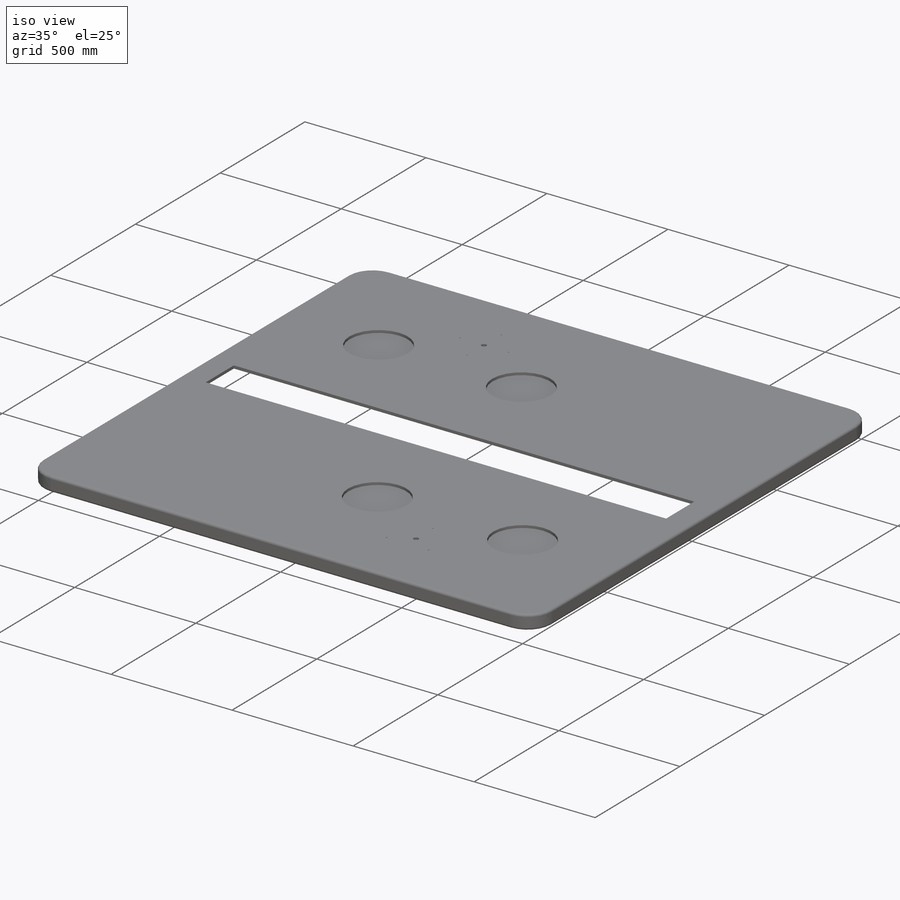
[diagram: iso view]
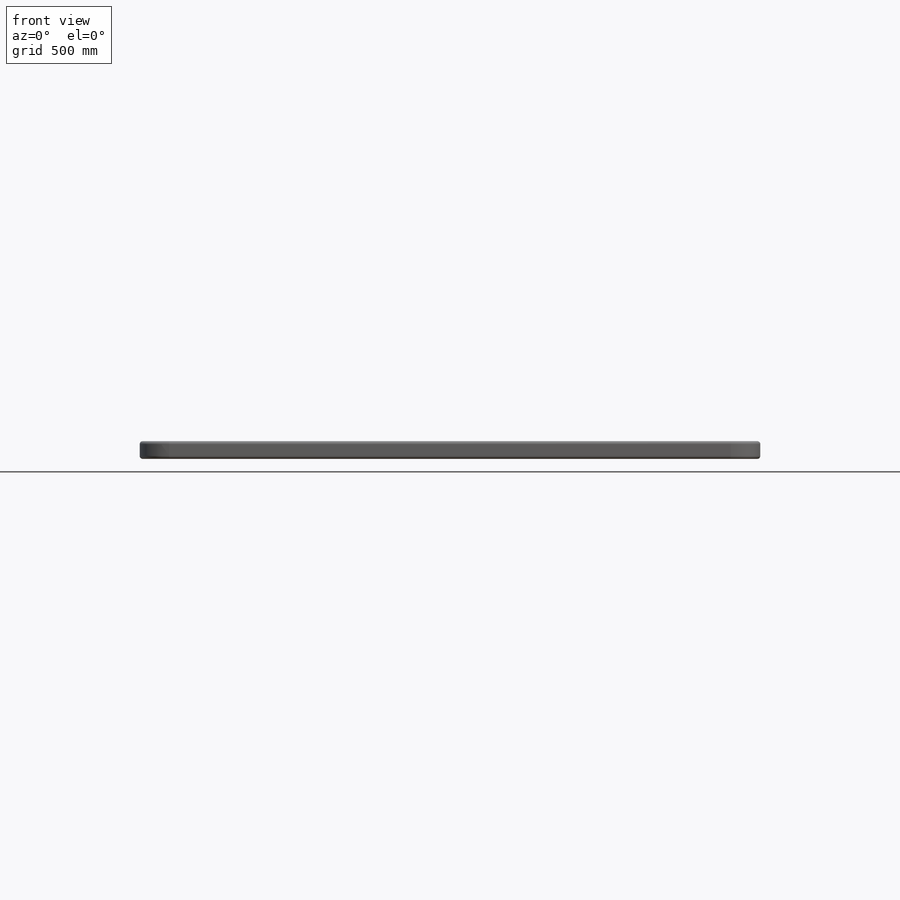
[diagram: front view]
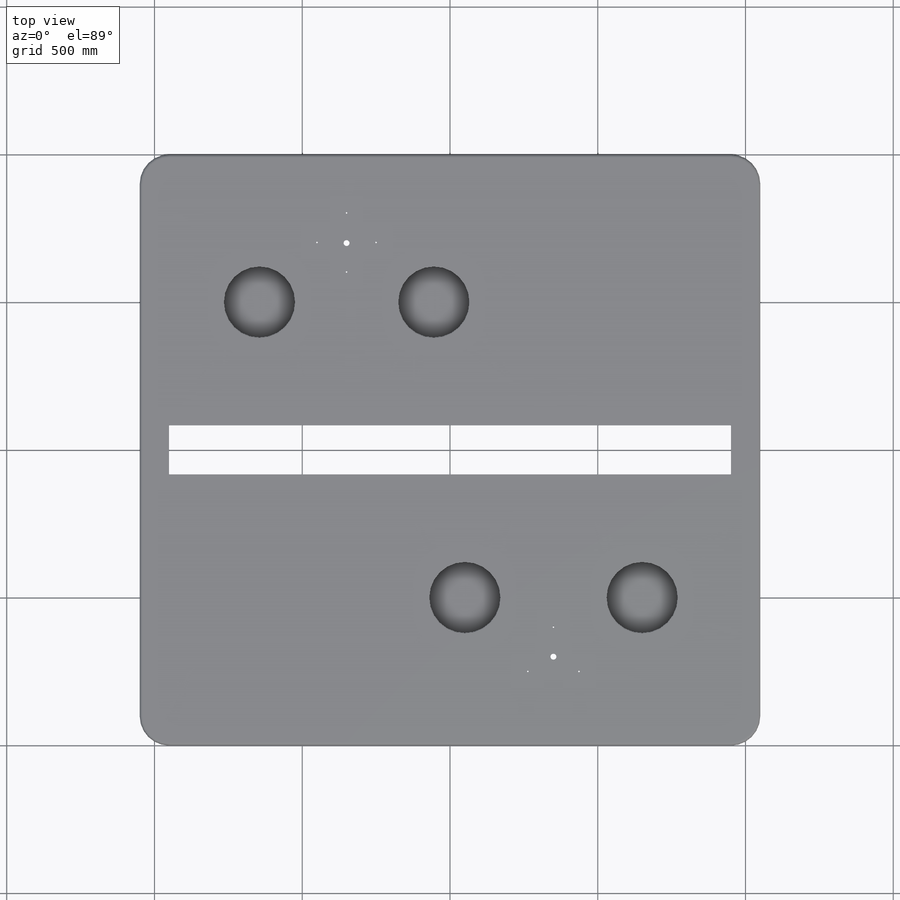
[diagram: top view]
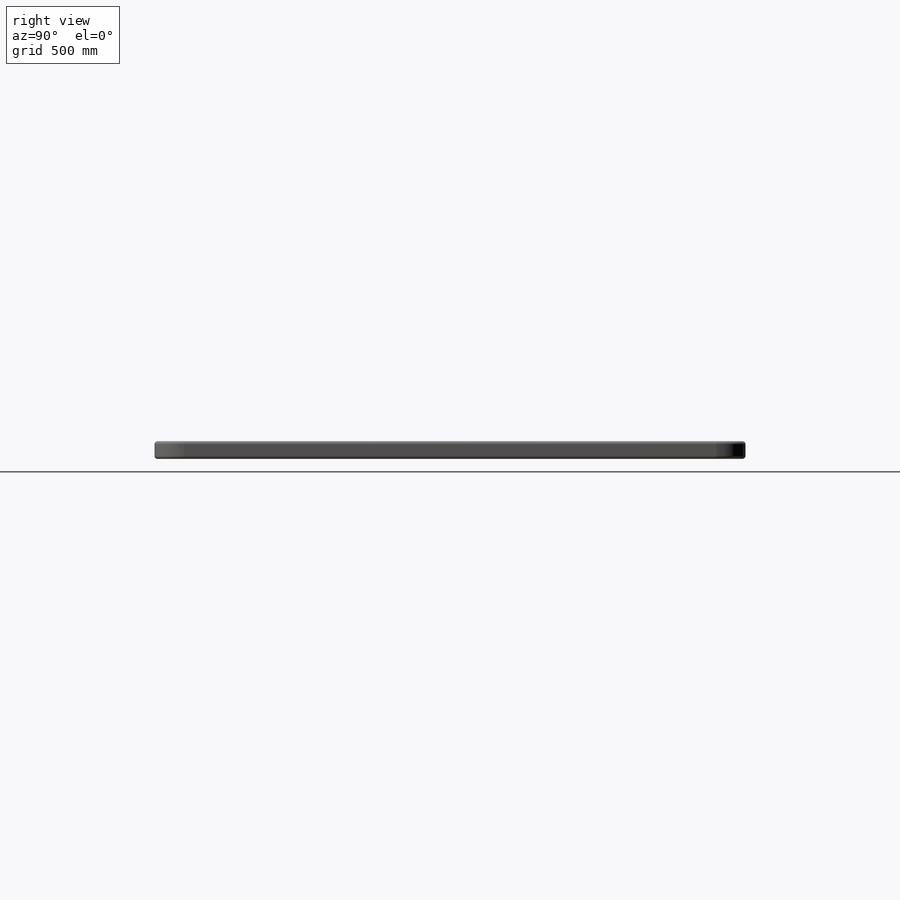
[diagram: right view]
SOLIDWORKS PART (.sldprt)
format: sldprt  version: not decoded by parser v0  size: 347,648 bytes
history: native  units: mm
features: thread x11, plane x3, material x1 + 5 further entries (+9 scaffold rows collapsed)
feature tree (29):
  scaffold x9  (default folders/planes/origin — collapsed)
  material  "材质 <未指定>"
  plane  "前视"
  plane  "上视"
  plane  "右视"
  "基体零件-table-2"
  "基体零件-table-3"
  "基体零件-table-4"
  "基体零件-table-5"
  "基体零件-table-6"
  thread  "孔螺蚊线6-基体零件-table-6"  Diameter=6mm  [1 undecoded]
  thread  "孔螺蚊线7-基体零件-table-6"  Diameter=6mm  [1 undecoded]
  thread  "孔螺蚊线8-基体零件-table-6"  Diameter=6mm  [1 undecoded]
  thread  "孔螺蚊线2-基体零件-table-6"  Diameter=6mm  [1 undecoded]
  thread  "孔螺蚊线3-基体零件-table-6"  Diameter=6mm  [1 undecoded]
  thread  "孔螺蚊线4-基体零件-table-6"  Diameter=6mm  [1 undecoded]
  thread  "孔螺蚊线5-基体零件-table-6"  Diameter=6mm  [1 undecoded]
  thread  "孔螺蚊线9-基体零件-table-6"  Diameter=6mm  [1 undecoded]
  thread  "孔螺蚊线9-基体零件-table-6"  Diameter=6mm  [1 undecoded]
  thread  "孔螺蚊线10-基体零件-table-6"  Diameter=6mm  [1 undecoded]
  thread  "孔螺蚊线10-基体零件-table-6"  Diameter=6mm  [1 undecoded]
decode coverage: 11 of 11 modeling features carry decoded parameters; 5 rows unclassified (native names shown)
note: 11 parameter values undecoded
note: suppression state not decoded; provenance and decode notes live in map.json
